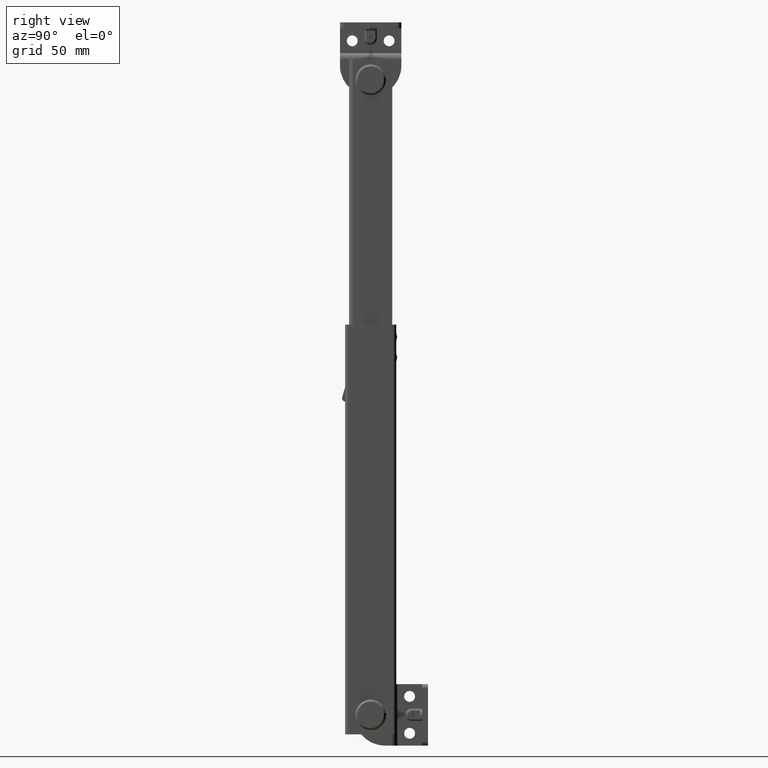
[diagram: clean part render]
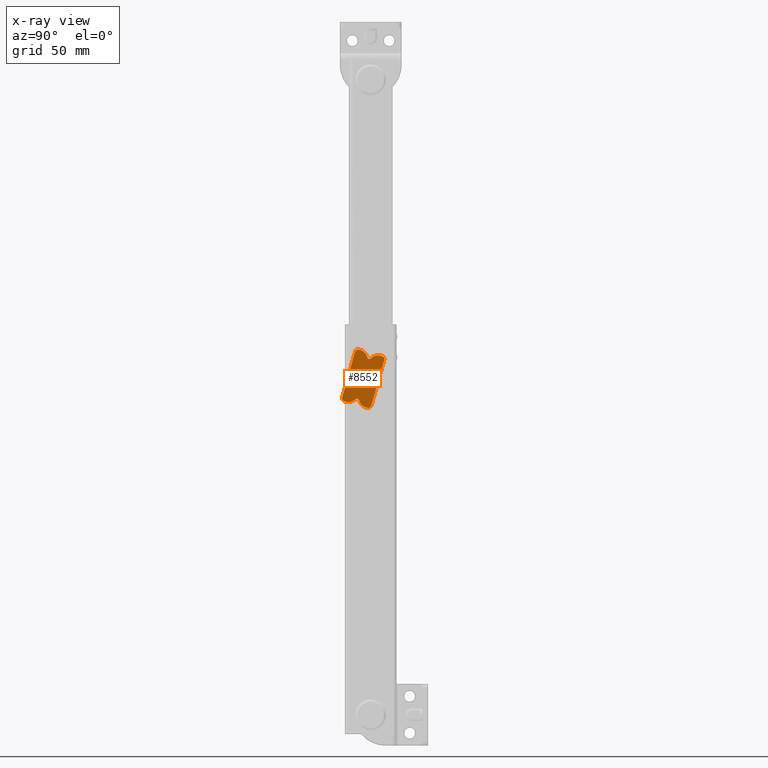
[diagram: x-ray — body ghosted, one internal face saturated and labeled with its STEP entity id]
A machine part, right view, then the same camera in x-ray: the body is ghosted and one INTERNAL B-rep face — a face not visible from any outside direction — is saturated and labeled: STEP entity #8552.
In plain terms, the highlighted face is a freeform B-spline surface patch.
Its self-contained STEP definition (entity closure, byte-faithful):
#7762=CARTESIAN_POINT('',(-8.699997000000238,-1.518414263843885,163.236068474418400));
#7763=VERTEX_POINT('',#7762);
#7769=CARTESIAN_POINT('',(-8.699997000000238,-3.504433315964420,161.0));
#7770=VERTEX_POINT('',#7769);
#7771=CARTESIAN_POINT('',(-8.699997000000238,-1.518414263843885,163.236068474418370));
#7772=CARTESIAN_POINT('',(-8.699997000000238,-1.504433315964420,163.118448244462740));
#7773=CARTESIAN_POINT('',(-8.699997000000238,-1.504433315964420,163.0));
#7774=CARTESIAN_POINT('',(-8.699997000000238,-1.504433315964420,161.000000000000060));
#7775=CARTESIAN_POINT('',(-8.699997000000238,-3.504433315964420,161.0));
#7783=(BOUNDED_CURVE()B_SPLINE_CURVE(2,(#7771,#7772,#7773,#7774,#7775),.UNSPECIFIED.,.F.,.U.)B_SPLINE_CURVE_WITH_KNOTS((3,2,3),(0.229562472646822,0.250000000000000,0.500000000000000),.UNSPECIFIED.)CURVE()GEOMETRIC_REPRESENTATION_ITEM()RATIONAL_B_SPLINE_CURVE((0.956026752484959,0.976055947315759,1.0,0.707106781186548,1.0))REPRESENTATION_ITEM(''));
#7784=EDGE_CURVE('',#7763,#7770,#7783,.T.);
#7786=CARTESIAN_POINT('',(-8.699997000000238,-5.500702912524845,162.877902916298210));
#7787=VERTEX_POINT('',#7786);
#7788=CARTESIAN_POINT('',(-8.699997000000238,-3.504433315964420,161.0));
#7789=CARTESIAN_POINT('',(-8.699997000000238,-5.385845441028418,161.000000000000060));
#7790=CARTESIAN_POINT('',(-8.699997000000238,-5.500702912524845,162.877902916298240));
#7798=(BOUNDED_CURVE()B_SPLINE_CURVE(2,(#7788,#7789,#7790),.UNSPECIFIED.,.F.,.U.)B_SPLINE_CURVE_WITH_KNOTS((3,3),(0.500000000000000,0.739332961441230),.UNSPECIFIED.)CURVE()GEOMETRIC_REPRESENTATION_ITEM()RATIONAL_B_SPLINE_CURVE((1.0,0.719603994221289,0.976072039957067))REPRESENTATION_ITEM(''));
#7799=EDGE_CURVE('',#7770,#7787,#7798,.T.);
#7873=CARTESIAN_POINT('',(-8.699997000000238,-3.504433315964420,165.0));
#7874=VERTEX_POINT('',#7873);
#7875=CARTESIAN_POINT('',(-8.699997000000238,-5.500702912524845,162.877902916298240));
#7876=CARTESIAN_POINT('',(-8.699997000000238,-5.504433315964419,162.938894468757810));
#7877=CARTESIAN_POINT('',(-8.699997000000238,-5.504433315964420,163.0));
#7878=CARTESIAN_POINT('',(-8.699997000000238,-5.504433315964420,165.000000000000090));
#7879=CARTESIAN_POINT('',(-8.699997000000238,-3.504433315964420,165.0));
#7887=(BOUNDED_CURVE()B_SPLINE_CURVE(2,(#7875,#7876,#7877,#7878,#7879),.UNSPECIFIED.,.F.,.U.)B_SPLINE_CURVE_WITH_KNOTS((3,2,3),(0.739332961441229,0.750000000000000,1.0),.UNSPECIFIED.)CURVE()GEOMETRIC_REPRESENTATION_ITEM()RATIONAL_B_SPLINE_CURVE((0.976072039957065,0.987502786965257,1.0,0.707106781186548,1.0))REPRESENTATION_ITEM(''));
#7888=EDGE_CURVE('',#7787,#7874,#7887,.T.);
#7890=CARTESIAN_POINT('',(-8.699997000000238,-3.504433315964420,165.0));
#7891=CARTESIAN_POINT('',(-8.699997000000236,-1.728084273257932,165.0));
#7892=CARTESIAN_POINT('',(-8.699997000000238,-1.518414263843885,163.236068474418370));
#7900=(BOUNDED_CURVE()B_SPLINE_CURVE(2,(#7890,#7891,#7892),.UNSPECIFIED.,.F.,.U.)B_SPLINE_CURVE_WITH_KNOTS((3,3),(0.0,0.229562472646822),.UNSPECIFIED.)CURVE()GEOMETRIC_REPRESENTATION_ITEM()RATIONAL_B_SPLINE_CURVE((1.0,0.731050833870789,0.956026752484959))REPRESENTATION_ITEM(''));
#7901=EDGE_CURVE('',#7874,#7763,#7900,.T.);
#7938=CARTESIAN_POINT('',(-8.699997000000238,-13.943822042972460,154.906710624394010));
#7939=VERTEX_POINT('',#7938);
#7945=CARTESIAN_POINT('',(-8.699997000000238,-13.179626596061500,153.160059138032490));
#7946=VERTEX_POINT('',#7945);
#7947=CARTESIAN_POINT('',(-8.699997000000238,-13.943822042972460,154.906710624394010));
#7948=CARTESIAN_POINT('',(-8.699997000000238,-14.280541627713161,153.718885010399820));
#7949=CARTESIAN_POINT('',(-8.699997000000238,-13.179626596061500,153.160059138032490));
#7957=(BOUNDED_CURVE()B_SPLINE_CURVE(2,(#7947,#7948,#7949),.UNSPECIFIED.,.F.,.U.)CURVE()GEOMETRIC_REPRESENTATION_ITEM()QUASI_UNIFORM_CURVE()RATIONAL_B_SPLINE_CURVE((1.0,0.772099080796662,1.0))REPRESENTATION_ITEM(''));
#7958=EDGE_CURVE('',#7939,#7946,#7957,.T.);
#7998=CARTESIAN_POINT('',(-8.699997000000238,-7.394296951850750,154.069752524835510));
#7999=VERTEX_POINT('',#7998);
#8000=CARTESIAN_POINT('',(-8.699997000000238,-13.179626596061500,153.160059138032490));
#8001=CARTESIAN_POINT('',(-8.699997000000238,-9.958332833758053,151.524939388439210));
#8002=CARTESIAN_POINT('',(-8.699997000000238,-7.394296951850750,154.069752524835510));
#8010=(BOUNDED_CURVE()B_SPLINE_CURVE(2,(#8000,#8001,#8002),.UNSPECIFIED.,.F.,.U.)CURVE()GEOMETRIC_REPRESENTATION_ITEM()QUASI_UNIFORM_CURVE()RATIONAL_B_SPLINE_CURVE((1.0,0.810570239036631,1.0))REPRESENTATION_ITEM(''));
#8011=EDGE_CURVE('',#7946,#7999,#8010,.T.);
#8053=CARTESIAN_POINT('',(-8.699997000000238,-5.716974126118630,153.591279584981010));
#8054=VERTEX_POINT('',#8053);
#8055=CARTESIAN_POINT('',(-8.699997000000238,-5.716974126118630,153.591279584981010));
#8056=CARTESIAN_POINT('',(-8.699997000000238,-5.852415458168139,154.160991121297880));
#8057=CARTESIAN_POINT('',(-8.699997000000238,-6.415541200800115,154.321628313763910));
#8058=CARTESIAN_POINT('',(-8.699997000000238,-6.978666943432092,154.482265506230050));
#8059=CARTESIAN_POINT('',(-8.699997000000238,-7.394296951850750,154.069752524835510));
#8067=(BOUNDED_CURVE()B_SPLINE_CURVE(2,(#8055,#8056,#8057,#8058,#8059),.UNSPECIFIED.,.F.,.U.)B_SPLINE_CURVE_WITH_KNOTS((3,2,3),(0.0,0.500000000000000,1.0),.UNSPECIFIED.)CURVE()GEOMETRIC_REPRESENTATION_ITEM()RATIONAL_B_SPLINE_CURVE((1.0,0.862930148487691,1.0,0.862930148487691,1.0))REPRESENTATION_ITEM(''));
#8068=EDGE_CURVE('',#8054,#7999,#8067,.T.);
#8108=CARTESIAN_POINT('',(-8.699997000000238,-1.282246532138980,149.766269413749000));
#8109=VERTEX_POINT('',#8108);
#8110=CARTESIAN_POINT('',(-8.699997000000238,-5.716974126118630,153.591279584981010));
#8111=CARTESIAN_POINT('',(-8.699997000000238,-4.881407718064707,150.076718136470900));
#8112=CARTESIAN_POINT('',(-8.699997000000238,-1.282246532138980,149.766269413749000));
#8120=(BOUNDED_CURVE()B_SPLINE_CURVE(2,(#8110,#8111,#8112),.UNSPECIFIED.,.F.,.U.)CURVE()GEOMETRIC_REPRESENTATION_ITEM()QUASI_UNIFORM_CURVE()RATIONAL_B_SPLINE_CURVE((1.0,0.810570390830070,1.0))REPRESENTATION_ITEM(''));
#8121=EDGE_CURVE('',#8054,#8109,#8120,.T.);
#8161=CARTESIAN_POINT('',(-8.699997000000238,0.289794781117141,150.851627297124510));
#8162=VERTEX_POINT('',#8161);
#8163=CARTESIAN_POINT('',(-8.699997000000238,-1.282246532138997,149.766269413748800));
#8164=CARTESIAN_POINT('',(-8.699997000000238,-0.048054602153521,149.659813385373920));
#8165=CARTESIAN_POINT('',(-8.699997000000238,0.289794781117235,150.851627297124510));
#8173=(BOUNDED_CURVE()B_SPLINE_CURVE(2,(#8163,#8164,#8165),.UNSPECIFIED.,.F.,.U.)CURVE()GEOMETRIC_REPRESENTATION_ITEM()QUASI_UNIFORM_CURVE()RATIONAL_B_SPLINE_CURVE((1.0,0.771051545647596,1.0))REPRESENTATION_ITEM(''));
#8174=EDGE_CURVE('',#8109,#8162,#8173,.T.);
#8197=CARTESIAN_POINT('',(-8.699997000000238,6.621902846740269,173.189079596876010));
#8198=VERTEX_POINT('',#8197);
#8199=CARTESIAN_POINT('',(-8.699997000000238,6.621902846740269,173.189079596876010));
#8200=CARTESIAN_POINT('',(-8.699997000000238,0.289794781117141,150.851627297124510));
#8201=QUASI_UNIFORM_CURVE('',1,(#8199,#8200),.UNSPECIFIED.,.F.,.U.);
#8202=EDGE_CURVE('',#8198,#8162,#8201,.T.);
#8242=CARTESIAN_POINT('',(-8.699997000000238,5.853296079943010,174.937960910379500));
#8243=VERTEX_POINT('',#8242);
#8244=CARTESIAN_POINT('',(-8.699997000000238,6.621902846740269,173.189079596876010));
#8245=CARTESIAN_POINT('',(-8.699997000000240,6.959754571039855,174.380899114030290));
#8246=CARTESIAN_POINT('',(-8.699997000000238,5.853296079943010,174.937960910379500));
#8254=(BOUNDED_CURVE()B_SPLINE_CURVE(2,(#8244,#8245,#8246),.UNSPECIFIED.,.F.,.U.)CURVE()GEOMETRIC_REPRESENTATION_ITEM()QUASI_UNIFORM_CURVE()RATIONAL_B_SPLINE_CURVE((1.0,0.771050971984884,1.0))REPRESENTATION_ITEM(''));
#8255=EDGE_CURVE('',#8198,#8243,#8254,.T.);
#8295=CARTESIAN_POINT('',(-8.699997000000238,0.070995455098226,174.009207272129000));
#8296=VERTEX_POINT('',#8295);
#8297=CARTESIAN_POINT('',(-8.699997000000238,5.853296079943010,174.937960910379500));
#8298=CARTESIAN_POINT('',(-8.699997000000238,2.626631416759389,176.562456918110740));
#8299=CARTESIAN_POINT('',(-8.699997000000238,0.070995455098226,174.009207272129000));
#8307=(BOUNDED_CURVE()B_SPLINE_CURVE(2,(#8297,#8298,#8299),.UNSPECIFIED.,.F.,.U.)CURVE()GEOMETRIC_REPRESENTATION_ITEM()QUASI_UNIFORM_CURVE()RATIONAL_B_SPLINE_CURVE((1.0,0.810570185563385,1.0))REPRESENTATION_ITEM(''));
#8308=EDGE_CURVE('',#8243,#8296,#8307,.T.);
#8350=CARTESIAN_POINT('',(-8.699997000000238,-1.607894730450570,174.482144871559510));
#8351=VERTEX_POINT('',#8350);
#8352=CARTESIAN_POINT('',(-8.699997000000238,-1.607894730450570,174.482144871559510));
#8353=CARTESIAN_POINT('',(-8.699997000000238,-1.470574027257239,173.912885156685660));
#8354=CARTESIAN_POINT('',(-8.699997000000238,-0.906922912115281,173.754106573305900));
#8355=CARTESIAN_POINT('',(-8.699997000000238,-0.343271796973322,173.595327989926290));
#8356=CARTESIAN_POINT('',(-8.699997000000238,0.070995455098226,174.009207272129000));
#8364=(BOUNDED_CURVE()B_SPLINE_CURVE(2,(#8352,#8353,#8354,#8355,#8356),.UNSPECIFIED.,.F.,.U.)B_SPLINE_CURVE_WITH_KNOTS((3,2,3),(0.0,0.500000000000000,1.0),.UNSPECIFIED.)CURVE()GEOMETRIC_REPRESENTATION_ITEM()RATIONAL_B_SPLINE_CURVE((1.0,0.862930788027337,1.0,0.862930788027337,1.0))REPRESENTATION_ITEM(''));
#8365=EDGE_CURVE('',#8351,#8296,#8364,.T.);
#8405=CARTESIAN_POINT('',(-8.699997000000238,-6.055200788696359,178.292524497538010));
#8406=VERTEX_POINT('',#8405);
#8407=CARTESIAN_POINT('',(-8.699997000000238,-1.607894730450570,174.482144871559510));
#8408=CARTESIAN_POINT('',(-8.699997000000238,-2.455035203346810,177.993935542588900));
#8409=CARTESIAN_POINT('',(-8.699997000000238,-6.055200788696359,178.292524497538010));
#8417=(BOUNDED_CURVE()B_SPLINE_CURVE(2,(#8407,#8408,#8409),.UNSPECIFIED.,.F.,.U.)CURVE()GEOMETRIC_REPRESENTATION_ITEM()QUASI_UNIFORM_CURVE()RATIONAL_B_SPLINE_CURVE((1.0,0.810570306107185,1.0))REPRESENTATION_ITEM(''));
#8418=EDGE_CURVE('',#8351,#8406,#8417,.T.);
#8458=CARTESIAN_POINT('',(-8.699997000000238,-7.622319552482110,177.206750181629500));
#8459=VERTEX_POINT('',#8458);
#8460=CARTESIAN_POINT('',(-8.699997000000238,-6.055200788696329,178.292524497538410));
#8461=CARTESIAN_POINT('',(-8.699997000000238,-7.285601743265897,178.394572297724810));
#8462=CARTESIAN_POINT('',(-8.699997000000238,-7.622319552482205,177.206750181629500));
#8470=(BOUNDED_CURVE()B_SPLINE_CURVE(2,(#8460,#8461,#8462),.UNSPECIFIED.,.F.,.U.)CURVE()GEOMETRIC_REPRESENTATION_ITEM()QUASI_UNIFORM_CURVE()RATIONAL_B_SPLINE_CURVE((1.0,0.772099080796622,1.0))REPRESENTATION_ITEM(''));
#8471=EDGE_CURVE('',#8406,#8459,#8470,.T.);
#8492=CARTESIAN_POINT('',(-8.699997000000238,-13.943822042972460,154.906710624394010));
#8493=CARTESIAN_POINT('',(-8.699997000000238,-7.622319552482110,177.206750181629500));
#8494=QUASI_UNIFORM_CURVE('',1,(#8492,#8493),.UNSPECIFIED.,.F.,.U.);
#8495=EDGE_CURVE('',#7939,#8459,#8494,.T.);
#8527=CARTESIAN_POINT('',(-8.699997000000199,-15.033624471293770,179.723007744045590));
#8528=CARTESIAN_POINT('',(-8.699997000000199,7.711706157277496,179.723007744045590));
#8529=CARTESIAN_POINT('',(-8.699997000000199,-15.033624471293770,148.335326701541310));
#8530=CARTESIAN_POINT('',(-8.699997000000199,7.711706157277496,148.335326701541310));
#8531=B_SPLINE_SURFACE_WITH_KNOTS('',1,1,((#8527,#8529),(#8528,#8530)),.UNSPECIFIED.,.F.,.F.,.U.,(2,2),(2,2),(0.0,22.745330628571271),(0.0,31.387681042504290),.UNSPECIFIED.);
#8532=ORIENTED_EDGE('',*,*,#8495,.T.);
#8533=ORIENTED_EDGE('',*,*,#8471,.F.);
#8534=ORIENTED_EDGE('',*,*,#8418,.F.);
#8535=ORIENTED_EDGE('',*,*,#8365,.T.);
#8536=ORIENTED_EDGE('',*,*,#8308,.F.);
#8537=ORIENTED_EDGE('',*,*,#8255,.F.);
#8538=ORIENTED_EDGE('',*,*,#8202,.T.);
#8539=ORIENTED_EDGE('',*,*,#8174,.F.);
#8540=ORIENTED_EDGE('',*,*,#8121,.F.);
#8541=ORIENTED_EDGE('',*,*,#8068,.T.);
#8542=ORIENTED_EDGE('',*,*,#8011,.F.);
#8543=ORIENTED_EDGE('',*,*,#7958,.F.);
#8544=EDGE_LOOP('',(#8532,#8533,#8534,#8535,#8536,#8537,#8538,#8539,#8540,#8541,#8542,#8543));
#8545=FACE_OUTER_BOUND('',#8544,.T.);
#8546=ORIENTED_EDGE('',*,*,#7799,.F.);
#8547=ORIENTED_EDGE('',*,*,#7784,.F.);
#8548=ORIENTED_EDGE('',*,*,#7901,.F.);
#8549=ORIENTED_EDGE('',*,*,#7888,.F.);
#8550=EDGE_LOOP('',(#8546,#8547,#8548,#8549));
#8551=FACE_BOUND('',#8550,.T.);
#8552=ADVANCED_FACE('',(#8545,#8551),#8531,.T.);